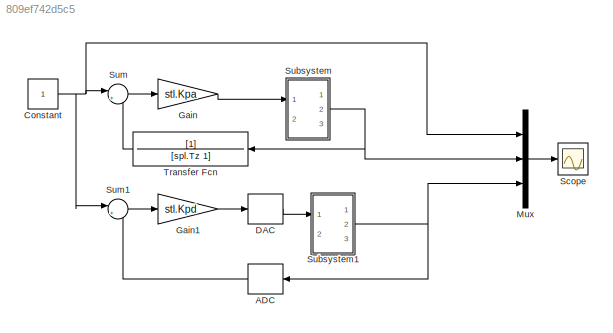
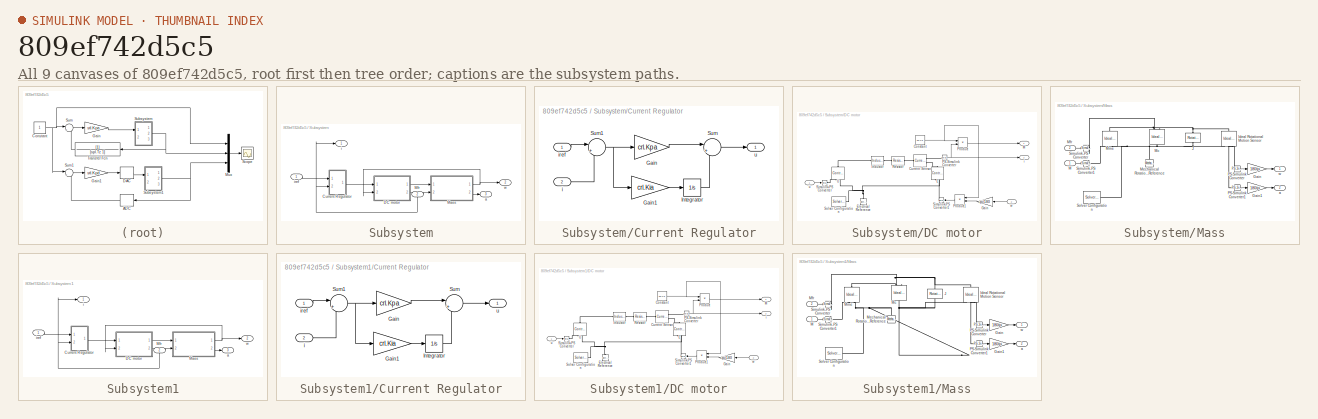
[diagram: thumbnail index - all 9 canvases of the model, root first then tree order]
MODEL slx_809ef742d5c5
KIND model
CONFIG AbsTol = auto
CONFIG EnableMultiTasking = off
CONFIG FixedStep = To/100
CONFIG MaxStep = auto
CONFIG MinStep = auto
CONFIG RelTol = 1e-3
CONFIG SampleTimeConstraint = Unconstrained
CONFIG SolverName = ode3
CONFIG StartTime = 0.0
CONFIG StopTime = Tmdl
BLOCK [ZeroOrderHold] ADC
  SampleTime = To
BLOCK [Constant] Constant
BLOCK [ZeroOrderHold] DAC
  SampleTime = To
BLOCK [Gain] Gain
  Gain = stl.Kpa
BLOCK [Gain] Gain1
  Gain = stl.Kpd
BLOCK [Mux] Mux
  DisplayOption = bar
  Inputs = 3
  Ports = [3, 1]
BLOCK [Scope] Scope
  Floating = off
  NumInputPorts = 1
  Ports = [1]
  ScopeSpecificationString = Simulink.scopes.TimeScopeBlockCfg('CurrentConfiguration', extmgr.ConfigurationSet(extmgr.Configuration('Core','General UI',true),extmgr.Configuration('Core','Source UI',true),extmgr.Configuration('Sources','WiredSimulink',true,'DataLoggingVariableName','w','DataLogging',true,'DataLoggingSaveFormat','Array'),extmgr.Configuration('Visuals','Time Domain',true,'SerializedDisplays',{struct('MinYLimReal...<+1438ch>
BLOCK [SubSystem] Subsystem
  Ports = [2, 3]
  RequestExecContextInheritance = off
BLOCK [SubSystem] Subsystem/Current Regulator
  Ports = [2, 1]
  RequestExecContextInheritance = off
BLOCK [Gain] Subsystem/Current Regulator/Gain
  Gain = crl.Kpa
BLOCK [Gain] Subsystem/Current Regulator/Gain1
  Gain = crl.Kia
BLOCK [Integrator] Subsystem/Current Regulator/Integrator
  Ports = [1, 1]
BLOCK [Sum] Subsystem/Current Regulator/Sum
  Inputs = |++
  Ports = [2, 1]
BLOCK [Sum] Subsystem/Current Regulator/Sum1
  Inputs = |+-
  Ports = [2, 1]
BLOCK [Inport] Subsystem/Current Regulator/i
  Port = 2
BLOCK [Inport] Subsystem/Current Regulator/iref
BLOCK [Outport] Subsystem/Current Regulator/u
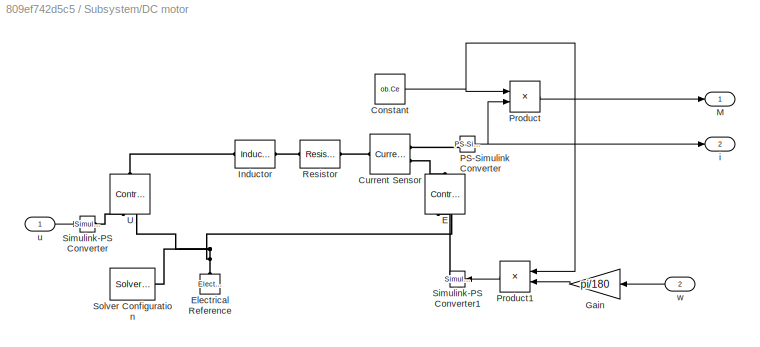
BLOCK [SubSystem] Subsystem/DC motor
  Ports = [2, 2]
  RequestExecContextInheritance = off
BLOCK [Constant] Subsystem/DC motor/Constant
  Value = ob.Ce
BLOCK [Reference] Subsystem/DC motor/Current Sensor  REF=fl_lib/Electrical/Electrical Sensors/Current Sensor
  Ports = [0, 0, 0, 0, 0, 1, 2]
  SourceBlock = fl_lib/Electrical/Electrical Sensors/Current Sensor
  SourceProductBaseCode = PW,SS,VE
  SourceType = Current Sensor
BLOCK [Reference] Subsystem/DC motor/E  REF=fl_lib/Electrical/Electrical Sources/Controlled Voltage
Source
  NameLocation = right
  Ports = [0, 0, 0, 0, 0, 1, 2]
  SourceBlock = fl_lib/Electrical/Electrical Sources/Controlled Voltage\nSource
  SourceProductBaseCode = PW,SS,VE
  SourceType = Controlled Voltage\nSource
BLOCK [Reference] Subsystem/DC motor/Electrical Reference  REF=fl_lib/Electrical/Electrical Elements/Electrical Reference
  NameLocation = right
  Ports = [0, 0, 0, 0, 0, 1]
  SourceBlock = fl_lib/Electrical/Electrical Elements/Electrical Reference
  SourceProductBaseCode = PW,SS,VE
  SourceType = Electrical Reference
BLOCK [Gain] Subsystem/DC motor/Gain
  Gain = pi/180
  NameLocation = top
BLOCK [Reference] Subsystem/DC motor/Inductor  REF=fl_lib/Electrical/Electrical Elements/Inductor
  Ports = [0, 0, 0, 0, 0, 1, 1]
  SourceBlock = fl_lib/Electrical/Electrical Elements/Inductor
  SourceProductBaseCode = PW,SS,VE
  SourceType = Inductor
BLOCK [Outport] Subsystem/DC motor/M
BLOCK [Reference] Subsystem/DC motor/PS-Simulink Converter  REF=nesl_utility/PS-Simulink
Converter
  Ports = [0, 1, 0, 0, 0, 1]
  SourceBlock = nesl_utility/PS-Simulink\nConverter
  SourceProductBaseCode = SS,PW,VE
  SourceType = PS-Simulink\nConverter
BLOCK [Product] Subsystem/DC motor/Product
  Ports = [2, 1]
BLOCK [Product] Subsystem/DC motor/Product1
  NameLocation = top
  Ports = [2, 1]
BLOCK [Reference] Subsystem/DC motor/Resistor  REF=fl_lib/Electrical/Electrical Elements/Resistor
  Ports = [0, 0, 0, 0, 0, 1, 1]
  SourceBlock = fl_lib/Electrical/Electrical Elements/Resistor
  SourceProductBaseCode = PW,SS,VE
  SourceType = Resistor
BLOCK [Reference] Subsystem/DC motor/Simulink-PS Converter  REF=nesl_utility/Simulink-PS
Converter
  Ports = [1, 0, 0, 0, 0, 0, 1]
  SourceBlock = nesl_utility/Simulink-PS\nConverter
  SourceProductBaseCode = SS,PW,VE
  SourceType = Simulink-PS\nConverter
BLOCK [Reference] Subsystem/DC motor/Simulink-PS Converter1  REF=nesl_utility/Simulink-PS
Converter
  NameLocation = top
  Ports = [1, 0, 0, 0, 0, 0, 1]
  SourceBlock = nesl_utility/Simulink-PS\nConverter
  SourceProductBaseCode = SS,PW,VE
  SourceType = Simulink-PS\nConverter
BLOCK [Reference] Subsystem/DC motor/Solver Configuration  REF=nesl_utility/Solver
Configuration
  Ports = [0, 0, 0, 0, 0, 0, 1]
  SourceBlock = nesl_utility/Solver\nConfiguration
  SourceProductBaseCode = SS,PW,VE
  SourceType = Solver\nConfiguration
BLOCK [Reference] Subsystem/DC motor/U  REF=fl_lib/Electrical/Electrical Sources/Controlled Voltage
Source
  NameLocation = right
  Ports = [0, 0, 0, 0, 0, 1, 2]
  SourceBlock = fl_lib/Electrical/Electrical Sources/Controlled Voltage\nSource
  SourceProductBaseCode = PW,SS,VE
  SourceType = Controlled Voltage\nSource
BLOCK [Outport] Subsystem/DC motor/i
  Port = 2
BLOCK [Inport] Subsystem/DC motor/u
BLOCK [Inport] Subsystem/DC motor/w
  Port = 2
BLOCK [SubSystem] Subsystem/Mass
  Ports = [2, 2]
  RequestExecContextInheritance = off
BLOCK [Gain] Subsystem/Mass/Gain
  Gain = 180/pi
BLOCK [Gain] Subsystem/Mass/Gain1
  Gain = 180/pi
BLOCK [Reference] Subsystem/Mass/Ideal Rotational Motion Sensor  REF=fl_lib/Mechanical/Mechanical Sensors/Ideal Rotational
Motion Sensor
  NameLocation = left
  Ports = [0, 0, 0, 0, 0, 1, 3]
  SourceBlock = fl_lib/Mechanical/Mechanical Sensors/Ideal Rotational\nMotion Sensor
  SourceProductBaseCode = PW,SS,VE
  SourceType = Ideal Rotational\nMotion Sensor
BLOCK [Reference] Subsystem/Mass/J  REF=fl_lib/Mechanical/Rotational Elements/Rotational Inerter
  NameLocation = left
  Ports = [0, 0, 0, 0, 0, 1, 1]
  SourceBlock = fl_lib/Mechanical/Rotational Elements/Rotational Inerter
  SourceProductBaseCode = PW,SS,VE
  SourceType = Rotational Inerter
BLOCK [Inport] Subsystem/Mass/M
BLOCK [Reference] Subsystem/Mass/Mc  REF=fl_lib/Mechanical/Mechanical Sources/Ideal Torque Source
  NameLocation = left
  Ports = [0, 0, 0, 0, 0, 1, 2]
  SourceBlock = fl_lib/Mechanical/Mechanical Sources/Ideal Torque Source
  SourceProductBaseCode = PW,SS,VE
  SourceType = Ideal Torque Source
BLOCK [Reference] Subsystem/Mass/Mechanical Rotational Reference  REF=fl_lib/Mechanical/Rotational Elements/Mechanical
Rotational Reference
  NameLocation = right
  Ports = [0, 0, 0, 0, 0, 1]
  SourceBlock = fl_lib/Mechanical/Rotational Elements/Mechanical\nRotational Reference
  SourceProductBaseCode = PW,SS,VE
  SourceType = Mechanical\nRotational Reference
BLOCK [Inport] Subsystem/Mass/Mfr
  Port = 2
BLOCK [Reference] Subsystem/Mass/Mme  REF=fl_lib/Mechanical/Mechanical Sources/Ideal Torque Source
  NameLocation = right
  Ports = [0, 0, 0, 0, 0, 1, 2]
  SourceBlock = fl_lib/Mechanical/Mechanical Sources/Ideal Torque Source
  SourceProductBaseCode = PW,SS,VE
  SourceType = Ideal Torque Source
BLOCK [Reference] Subsystem/Mass/PS-Simulink Converter  REF=nesl_utility/PS-Simulink
Converter
  Ports = [0, 1, 0, 0, 0, 1]
  SourceBlock = nesl_utility/PS-Simulink\nConverter
  SourceProductBaseCode = SS,PW,VE
  SourceType = PS-Simulink\nConverter
BLOCK [Reference] Subsystem/Mass/PS-Simulink Converter1  REF=nesl_utility/PS-Simulink
Converter
  Ports = [0, 1, 0, 0, 0, 1]
  SourceBlock = nesl_utility/PS-Simulink\nConverter
  SourceProductBaseCode = SS,PW,VE
  SourceType = PS-Simulink\nConverter
BLOCK [Reference] Subsystem/Mass/Simulink-PS Converter  REF=nesl_utility/Simulink-PS
Converter
  Ports = [1, 0, 0, 0, 0, 0, 1]
  SourceBlock = nesl_utility/Simulink-PS\nConverter
  SourceProductBaseCode = SS,PW,VE
  SourceType = Simulink-PS\nConverter
BLOCK [Reference] Subsystem/Mass/Simulink-PS Converter1  REF=nesl_utility/Simulink-PS
Converter
  Ports = [1, 0, 0, 0, 0, 0, 1]
  SourceBlock = nesl_utility/Simulink-PS\nConverter
  SourceProductBaseCode = SS,PW,VE
  SourceType = Simulink-PS\nConverter
BLOCK [Reference] Subsystem/Mass/Solver Configuration  REF=nesl_utility/Solver
Configuration
  Ports = [0, 0, 0, 0, 0, 0, 1]
  SourceBlock = nesl_utility/Solver\nConfiguration
  SourceProductBaseCode = SS,PW,VE
  SourceType = Solver\nConfiguration
BLOCK [Outport] Subsystem/Mass/a
  Port = 2
BLOCK [Outport] Subsystem/Mass/w
BLOCK [Inport] Subsystem/Mfr
  Port = 2
BLOCK [Outport] Subsystem/a
  Port = 3
BLOCK [Outport] Subsystem/i
BLOCK [Inport] Subsystem/iref
BLOCK [Outport] Subsystem/w
  Port = 2
BLOCK [SubSystem] Subsystem1
  Ports = [2, 3]
  RequestExecContextInheritance = off
BLOCK [SubSystem] Subsystem1/Current Regulator
  Ports = [2, 1]
  RequestExecContextInheritance = off
BLOCK [Gain] Subsystem1/Current Regulator/Gain
  Gain = crl.Kpa
BLOCK [Gain] Subsystem1/Current Regulator/Gain1
  Gain = crl.Kia
BLOCK [Integrator] Subsystem1/Current Regulator/Integrator
  Ports = [1, 1]
BLOCK [Sum] Subsystem1/Current Regulator/Sum
  Inputs = |++
  Ports = [2, 1]
BLOCK [Sum] Subsystem1/Current Regulator/Sum1
  Inputs = |+-
  Ports = [2, 1]
BLOCK [Inport] Subsystem1/Current Regulator/i
  Port = 2
BLOCK [Inport] Subsystem1/Current Regulator/iref
BLOCK [Outport] Subsystem1/Current Regulator/u
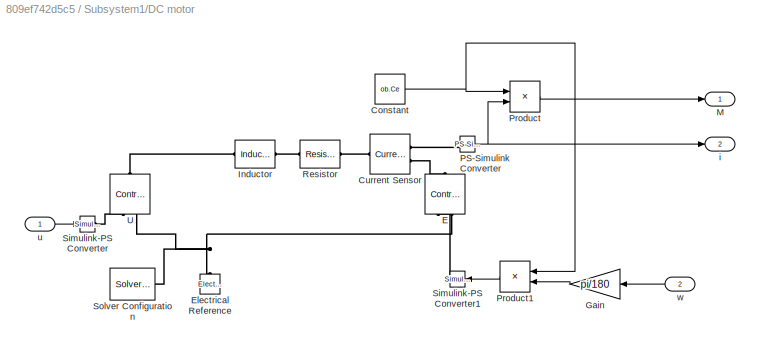
BLOCK [SubSystem] Subsystem1/DC motor
  Ports = [2, 2]
  RequestExecContextInheritance = off
BLOCK [Constant] Subsystem1/DC motor/Constant
  Value = ob.Ce
BLOCK [Reference] Subsystem1/DC motor/Current Sensor  REF=fl_lib/Electrical/Electrical Sensors/Current Sensor
  Ports = [0, 0, 0, 0, 0, 1, 2]
  SourceBlock = fl_lib/Electrical/Electrical Sensors/Current Sensor
  SourceProductBaseCode = PW,SS,VE
  SourceType = Current Sensor
BLOCK [Reference] Subsystem1/DC motor/E  REF=fl_lib/Electrical/Electrical Sources/Controlled Voltage
Source
  NameLocation = right
  Ports = [0, 0, 0, 0, 0, 1, 2]
  SourceBlock = fl_lib/Electrical/Electrical Sources/Controlled Voltage\nSource
  SourceProductBaseCode = PW,SS,VE
  SourceType = Controlled Voltage\nSource
BLOCK [Reference] Subsystem1/DC motor/Electrical Reference  REF=fl_lib/Electrical/Electrical Elements/Electrical Reference
  NameLocation = right
  Ports = [0, 0, 0, 0, 0, 1]
  SourceBlock = fl_lib/Electrical/Electrical Elements/Electrical Reference
  SourceProductBaseCode = PW,SS,VE
  SourceType = Electrical Reference
BLOCK [Gain] Subsystem1/DC motor/Gain
  Gain = pi/180
  NameLocation = top
BLOCK [Reference] Subsystem1/DC motor/Inductor  REF=fl_lib/Electrical/Electrical Elements/Inductor
  Ports = [0, 0, 0, 0, 0, 1, 1]
  SourceBlock = fl_lib/Electrical/Electrical Elements/Inductor
  SourceProductBaseCode = PW,SS,VE
  SourceType = Inductor
BLOCK [Outport] Subsystem1/DC motor/M
BLOCK [Reference] Subsystem1/DC motor/PS-Simulink Converter  REF=nesl_utility/PS-Simulink
Converter
  Ports = [0, 1, 0, 0, 0, 1]
  SourceBlock = nesl_utility/PS-Simulink\nConverter
  SourceProductBaseCode = SS,PW,VE
  SourceType = PS-Simulink\nConverter
BLOCK [Product] Subsystem1/DC motor/Product
  Ports = [2, 1]
BLOCK [Product] Subsystem1/DC motor/Product1
  NameLocation = top
  Ports = [2, 1]
BLOCK [Reference] Subsystem1/DC motor/Resistor  REF=fl_lib/Electrical/Electrical Elements/Resistor
  Ports = [0, 0, 0, 0, 0, 1, 1]
  SourceBlock = fl_lib/Electrical/Electrical Elements/Resistor
  SourceProductBaseCode = PW,SS,VE
  SourceType = Resistor
BLOCK [Reference] Subsystem1/DC motor/Simulink-PS Converter  REF=nesl_utility/Simulink-PS
Converter
  Ports = [1, 0, 0, 0, 0, 0, 1]
  SourceBlock = nesl_utility/Simulink-PS\nConverter
  SourceProductBaseCode = SS,PW,VE
  SourceType = Simulink-PS\nConverter
BLOCK [Reference] Subsystem1/DC motor/Simulink-PS Converter1  REF=nesl_utility/Simulink-PS
Converter
  NameLocation = top
  Ports = [1, 0, 0, 0, 0, 0, 1]
  SourceBlock = nesl_utility/Simulink-PS\nConverter
  SourceProductBaseCode = SS,PW,VE
  SourceType = Simulink-PS\nConverter
BLOCK [Reference] Subsystem1/DC motor/Solver Configuration  REF=nesl_utility/Solver
Configuration
  Ports = [0, 0, 0, 0, 0, 0, 1]
  SourceBlock = nesl_utility/Solver\nConfiguration
  SourceProductBaseCode = SS,PW,VE
  SourceType = Solver\nConfiguration
BLOCK [Reference] Subsystem1/DC motor/U  REF=fl_lib/Electrical/Electrical Sources/Controlled Voltage
Source
  NameLocation = right
  Ports = [0, 0, 0, 0, 0, 1, 2]
  SourceBlock = fl_lib/Electrical/Electrical Sources/Controlled Voltage\nSource
  SourceProductBaseCode = PW,SS,VE
  SourceType = Controlled Voltage\nSource
BLOCK [Outport] Subsystem1/DC motor/i
  Port = 2
BLOCK [Inport] Subsystem1/DC motor/u
BLOCK [Inport] Subsystem1/DC motor/w
  Port = 2
BLOCK [SubSystem] Subsystem1/Mass
  Ports = [2, 2]
  RequestExecContextInheritance = off
BLOCK [Gain] Subsystem1/Mass/Gain
  Gain = 180/pi
BLOCK [Gain] Subsystem1/Mass/Gain1
  Gain = 180/pi
BLOCK [Reference] Subsystem1/Mass/Ideal Rotational Motion Sensor  REF=fl_lib/Mechanical/Mechanical Sensors/Ideal Rotational
Motion Sensor
  NameLocation = left
  Ports = [0, 0, 0, 0, 0, 1, 3]
  SourceBlock = fl_lib/Mechanical/Mechanical Sensors/Ideal Rotational\nMotion Sensor
  SourceProductBaseCode = PW,SS,VE
  SourceType = Ideal Rotational\nMotion Sensor
BLOCK [Reference] Subsystem1/Mass/J  REF=fl_lib/Mechanical/Rotational Elements/Rotational Inerter
  NameLocation = left
  Ports = [0, 0, 0, 0, 0, 1, 1]
  SourceBlock = fl_lib/Mechanical/Rotational Elements/Rotational Inerter
  SourceProductBaseCode = PW,SS,VE
  SourceType = Rotational Inerter
BLOCK [Inport] Subsystem1/Mass/M
BLOCK [Reference] Subsystem1/Mass/Mc  REF=fl_lib/Mechanical/Mechanical Sources/Ideal Torque Source
  NameLocation = left
  Ports = [0, 0, 0, 0, 0, 1, 2]
  SourceBlock = fl_lib/Mechanical/Mechanical Sources/Ideal Torque Source
  SourceProductBaseCode = PW,SS,VE
  SourceType = Ideal Torque Source
BLOCK [Reference] Subsystem1/Mass/Mechanical Rotational Reference  REF=fl_lib/Mechanical/Rotational Elements/Mechanical
Rotational Reference
  NameLocation = right
  Ports = [0, 0, 0, 0, 0, 1]
  SourceBlock = fl_lib/Mechanical/Rotational Elements/Mechanical\nRotational Reference
  SourceProductBaseCode = PW,SS,VE
  SourceType = Mechanical\nRotational Reference
BLOCK [Inport] Subsystem1/Mass/Mfr
  Port = 2
BLOCK [Reference] Subsystem1/Mass/Mme  REF=fl_lib/Mechanical/Mechanical Sources/Ideal Torque Source
  NameLocation = right
  Ports = [0, 0, 0, 0, 0, 1, 2]
  SourceBlock = fl_lib/Mechanical/Mechanical Sources/Ideal Torque Source
  SourceProductBaseCode = PW,SS,VE
  SourceType = Ideal Torque Source
BLOCK [Reference] Subsystem1/Mass/PS-Simulink Converter  REF=nesl_utility/PS-Simulink
Converter
  Ports = [0, 1, 0, 0, 0, 1]
  SourceBlock = nesl_utility/PS-Simulink\nConverter
  SourceProductBaseCode = SS,PW,VE
  SourceType = PS-Simulink\nConverter
BLOCK [Reference] Subsystem1/Mass/PS-Simulink Converter1  REF=nesl_utility/PS-Simulink
Converter
  Ports = [0, 1, 0, 0, 0, 1]
  SourceBlock = nesl_utility/PS-Simulink\nConverter
  SourceProductBaseCode = SS,PW,VE
  SourceType = PS-Simulink\nConverter
BLOCK [Reference] Subsystem1/Mass/Simulink-PS Converter  REF=nesl_utility/Simulink-PS
Converter
  Ports = [1, 0, 0, 0, 0, 0, 1]
  SourceBlock = nesl_utility/Simulink-PS\nConverter
  SourceProductBaseCode = SS,PW,VE
  SourceType = Simulink-PS\nConverter
BLOCK [Reference] Subsystem1/Mass/Simulink-PS Converter1  REF=nesl_utility/Simulink-PS
Converter
  Ports = [1, 0, 0, 0, 0, 0, 1]
  SourceBlock = nesl_utility/Simulink-PS\nConverter
  SourceProductBaseCode = SS,PW,VE
  SourceType = Simulink-PS\nConverter
BLOCK [Reference] Subsystem1/Mass/Solver Configuration  REF=nesl_utility/Solver
Configuration
  Ports = [0, 0, 0, 0, 0, 0, 1]
  SourceBlock = nesl_utility/Solver\nConfiguration
  SourceProductBaseCode = SS,PW,VE
  SourceType = Solver\nConfiguration
BLOCK [Outport] Subsystem1/Mass/a
  Port = 2
BLOCK [Outport] Subsystem1/Mass/w
BLOCK [Inport] Subsystem1/Mfr
  Port = 2
BLOCK [Outport] Subsystem1/a
  Port = 3
BLOCK [Outport] Subsystem1/i
BLOCK [Inport] Subsystem1/iref
BLOCK [Outport] Subsystem1/w
  Port = 2
BLOCK [Sum] Sum
  Inputs = |+-
  Ports = [2, 1]
BLOCK [Sum] Sum1
  Inputs = |+-
  Ports = [2, 1]
BLOCK [TransferFcn] Transfer Fcn
  Denominator = [spl.Tz 1]
LINE ADC:1 -> Sum1:2
NET Constant:1 -> Mux:1, Sum1:1, Sum:1
LINE DAC:1 -> Subsystem1:1
LINE Gain1:1 -> DAC:1
LINE Gain:1 -> Subsystem:1
LINE Mux:1 -> Scope:1
LINE Subsystem/Current Regulator/Gain1:1 -> Subsystem/Current Regulator/Integrator:1
LINE Subsystem/Current Regulator/Gain:1 -> Subsystem/Current Regulator/Sum:1
LINE Subsystem/Current Regulator/Integrator:1 -> Subsystem/Current Regulator/Sum:2
NET Subsystem/Current Regulator/Sum1:1 -> Subsystem/Current Regulator/Gain1:1, Subsystem/Current Regulator/Gain:1
LINE Subsystem/Current Regulator/Sum:1 -> Subsystem/Current Regulator/u:1
LINE Subsystem/Current Regulator/i:1 -> Subsystem/Current Regulator/Sum1:2
LINE Subsystem/Current Regulator/iref:1 -> Subsystem/Current Regulator/Sum1:1
LINE Subsystem/Current Regulator:1 -> Subsystem/DC motor:1
NET Subsystem/DC motor/Constant:1 -> Subsystem/DC motor/Product1:1, Subsystem/DC motor/Product:1
LINE Subsystem/DC motor/Gain:1 -> Subsystem/DC motor/Product1:2
NET Subsystem/DC motor/PS-Simulink Converter:1 -> Subsystem/DC motor/Product:2, Subsystem/DC motor/i:1
LINE Subsystem/DC motor/Product1:1 -> Subsystem/DC motor/Simulink-PS Converter1:1
LINE Subsystem/DC motor/Product:1 -> Subsystem/DC motor/M:1
LINE Subsystem/DC motor/u:1 -> Subsystem/DC motor/Simulink-PS Converter:1
LINE Subsystem/DC motor/w:1 -> Subsystem/DC motor/Gain:1
LINE Subsystem/DC motor:1 -> Subsystem/Mass:1
NET Subsystem/DC motor:2 -> Subsystem/Current Regulator:2, Subsystem/i:1
LINE Subsystem/Mass/Gain1:1 -> Subsystem/Mass/a:1
LINE Subsystem/Mass/Gain:1 -> Subsystem/Mass/w:1
LINE Subsystem/Mass/M:1 -> Subsystem/Mass/Simulink-PS Converter1:1
LINE Subsystem/Mass/Mfr:1 -> Subsystem/Mass/Simulink-PS Converter:1
LINE Subsystem/Mass/PS-Simulink Converter1:1 -> Subsystem/Mass/Gain1:1
LINE Subsystem/Mass/PS-Simulink Converter:1 -> Subsystem/Mass/Gain:1
NET Subsystem/Mass:1 -> Subsystem/DC motor:2, Subsystem/w:1
LINE Subsystem/Mass:2 -> Subsystem/a:1
LINE Subsystem/Mfr:1 -> Subsystem/Mass:2
LINE Subsystem/iref:1 -> Subsystem/Current Regulator:1
LINE Subsystem1/Current Regulator/Gain1:1 -> Subsystem1/Current Regulator/Integrator:1
LINE Subsystem1/Current Regulator/Gain:1 -> Subsystem1/Current Regulator/Sum:1
LINE Subsystem1/Current Regulator/Integrator:1 -> Subsystem1/Current Regulator/Sum:2
NET Subsystem1/Current Regulator/Sum1:1 -> Subsystem1/Current Regulator/Gain1:1, Subsystem1/Current Regulator/Gain:1
LINE Subsystem1/Current Regulator/Sum:1 -> Subsystem1/Current Regulator/u:1
LINE Subsystem1/Current Regulator/i:1 -> Subsystem1/Current Regulator/Sum1:2
LINE Subsystem1/Current Regulator/iref:1 -> Subsystem1/Current Regulator/Sum1:1
LINE Subsystem1/Current Regulator:1 -> Subsystem1/DC motor:1
NET Subsystem1/DC motor/Constant:1 -> Subsystem1/DC motor/Product1:1, Subsystem1/DC motor/Product:1
LINE Subsystem1/DC motor/Gain:1 -> Subsystem1/DC motor/Product1:2
NET Subsystem1/DC motor/PS-Simulink Converter:1 -> Subsystem1/DC motor/Product:2, Subsystem1/DC motor/i:1
LINE Subsystem1/DC motor/Product1:1 -> Subsystem1/DC motor/Simulink-PS Converter1:1
LINE Subsystem1/DC motor/Product:1 -> Subsystem1/DC motor/M:1
LINE Subsystem1/DC motor/u:1 -> Subsystem1/DC motor/Simulink-PS Converter:1
LINE Subsystem1/DC motor/w:1 -> Subsystem1/DC motor/Gain:1
LINE Subsystem1/DC motor:1 -> Subsystem1/Mass:1
NET Subsystem1/DC motor:2 -> Subsystem1/Current Regulator:2, Subsystem1/i:1
LINE Subsystem1/Mass/Gain1:1 -> Subsystem1/Mass/a:1
LINE Subsystem1/Mass/Gain:1 -> Subsystem1/Mass/w:1
LINE Subsystem1/Mass/M:1 -> Subsystem1/Mass/Simulink-PS Converter1:1
LINE Subsystem1/Mass/Mfr:1 -> Subsystem1/Mass/Simulink-PS Converter:1
LINE Subsystem1/Mass/PS-Simulink Converter1:1 -> Subsystem1/Mass/Gain1:1
LINE Subsystem1/Mass/PS-Simulink Converter:1 -> Subsystem1/Mass/Gain:1
NET Subsystem1/Mass:1 -> Subsystem1/DC motor:2, Subsystem1/w:1
LINE Subsystem1/Mass:2 -> Subsystem1/a:1
LINE Subsystem1/Mfr:1 -> Subsystem1/Mass:2
LINE Subsystem1/iref:1 -> Subsystem1/Current Regulator:1
NET Subsystem1:2 -> ADC:1, Mux:3
NET Subsystem:2 -> Mux:2, Transfer Fcn:1
LINE Sum1:1 -> Gain1:1
LINE Sum:1 -> Gain:1
LINE Transfer Fcn:1 -> Sum:2
PLINE Subsystem/DC motor/Current Sensor:LConn1 -- Subsystem/DC motor/Resistor:RConn1
PLINE Subsystem/DC motor/Current Sensor:RConn1 -- Subsystem/DC motor/PS-Simulink Converter:LConn1
PLINE Subsystem/DC motor/Current Sensor:RConn2 -- Subsystem/DC motor/E:LConn1
PLINE Subsystem/DC motor/E:RConn1 -- Subsystem/DC motor/Simulink-PS Converter1:RConn1
PNET net1: Subsystem/DC motor/E:RConn2 -- Subsystem/DC motor/Electrical Reference:LConn1 -- Subsystem/DC motor/Solver Configuration:RConn1 -- Subsystem/DC motor/U:RConn2
PLINE Subsystem/DC motor/Inductor:LConn1 -- Subsystem/DC motor/U:LConn1
PLINE Subsystem/DC motor/Inductor:RConn1 -- Subsystem/DC motor/Resistor:LConn1
PLINE Subsystem/DC motor/Simulink-PS Converter:RConn1 -- Subsystem/DC motor/U:RConn1
PNET net2: Subsystem/Mass/Ideal Rotational Motion Sensor:LConn1 -- Subsystem/Mass/J:LConn1 -- Subsystem/Mass/Mc:RConn2 -- Subsystem/Mass/Mme:LConn1
PNET net3: Subsystem/Mass/Ideal Rotational Motion Sensor:RConn1 -- Subsystem/Mass/J:RConn1 -- Subsystem/Mass/Mc:LConn1 -- Subsystem/Mass/Mechanical Rotational Reference:LConn1 -- Subsystem/Mass/Mme:RConn2 -- Subsystem/Mass/Solver Configuration:RConn1
PLINE Subsystem/Mass/Ideal Rotational Motion Sensor:RConn2 -- Subsystem/Mass/PS-Simulink Converter:LConn1
PLINE Subsystem/Mass/Ideal Rotational Motion Sensor:RConn3 -- Subsystem/Mass/PS-Simulink Converter1:LConn1
PLINE Subsystem/Mass/Mc:RConn1 -- Subsystem/Mass/Simulink-PS Converter:RConn1
PLINE Subsystem/Mass/Mme:RConn1 -- Subsystem/Mass/Simulink-PS Converter1:RConn1
PLINE Subsystem1/DC motor/Current Sensor:LConn1 -- Subsystem1/DC motor/Resistor:RConn1
PLINE Subsystem1/DC motor/Current Sensor:RConn1 -- Subsystem1/DC motor/PS-Simulink Converter:LConn1
PLINE Subsystem1/DC motor/Current Sensor:RConn2 -- Subsystem1/DC motor/E:LConn1
PLINE Subsystem1/DC motor/E:RConn1 -- Subsystem1/DC motor/Simulink-PS Converter1:RConn1
PNET net4: Subsystem1/DC motor/E:RConn2 -- Subsystem1/DC motor/Electrical Reference:LConn1 -- Subsystem1/DC motor/Solver Configuration:RConn1 -- Subsystem1/DC motor/U:RConn2
PLINE Subsystem1/DC motor/Inductor:LConn1 -- Subsystem1/DC motor/U:LConn1
PLINE Subsystem1/DC motor/Inductor:RConn1 -- Subsystem1/DC motor/Resistor:LConn1
PLINE Subsystem1/DC motor/Simulink-PS Converter:RConn1 -- Subsystem1/DC motor/U:RConn1
PNET net5: Subsystem1/Mass/Ideal Rotational Motion Sensor:LConn1 -- Subsystem1/Mass/J:LConn1 -- Subsystem1/Mass/Mc:RConn2 -- Subsystem1/Mass/Mme:LConn1
PNET net6: Subsystem1/Mass/Ideal Rotational Motion Sensor:RConn1 -- Subsystem1/Mass/J:RConn1 -- Subsystem1/Mass/Mc:LConn1 -- Subsystem1/Mass/Mechanical Rotational Reference:LConn1 -- Subsystem1/Mass/Mme:RConn2 -- Subsystem1/Mass/Solver Configuration:RConn1
PLINE Subsystem1/Mass/Ideal Rotational Motion Sensor:RConn2 -- Subsystem1/Mass/PS-Simulink Converter:LConn1
PLINE Subsystem1/Mass/Ideal Rotational Motion Sensor:RConn3 -- Subsystem1/Mass/PS-Simulink Converter1:LConn1
PLINE Subsystem1/Mass/Mc:RConn1 -- Subsystem1/Mass/Simulink-PS Converter:RConn1
PLINE Subsystem1/Mass/Mme:RConn1 -- Subsystem1/Mass/Simulink-PS Converter1:RConn1
note: NET lines group one-source signal fan-out (src -> all destinations, sorted); 1:1 wires keep LINE; PNET lines group multi-terminal physical nets as a canonical sorted terminal list (undirected conserving connections); 2-terminal nets keep the pairwise PLINE form
